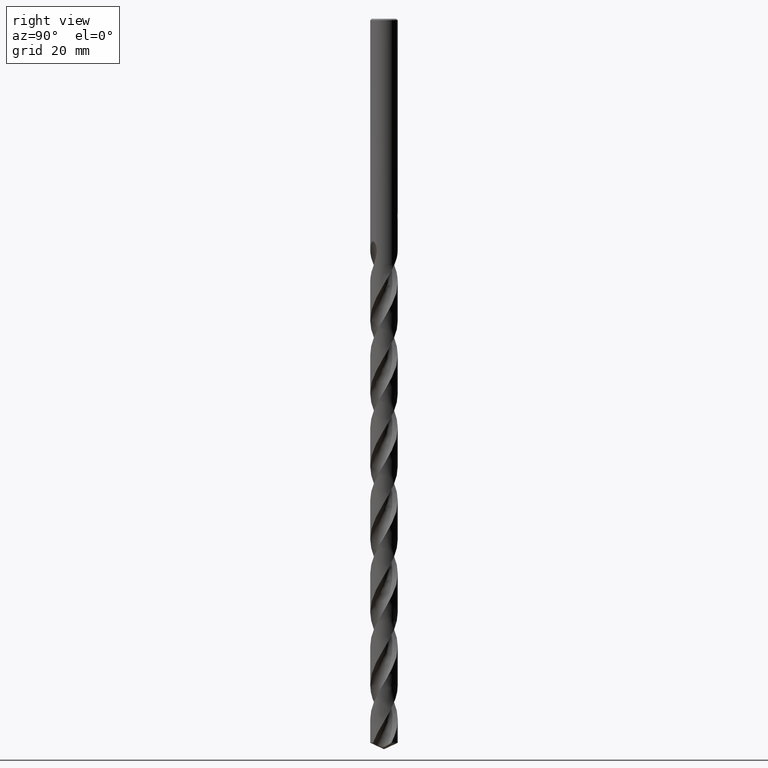
[diagram: clean part render]
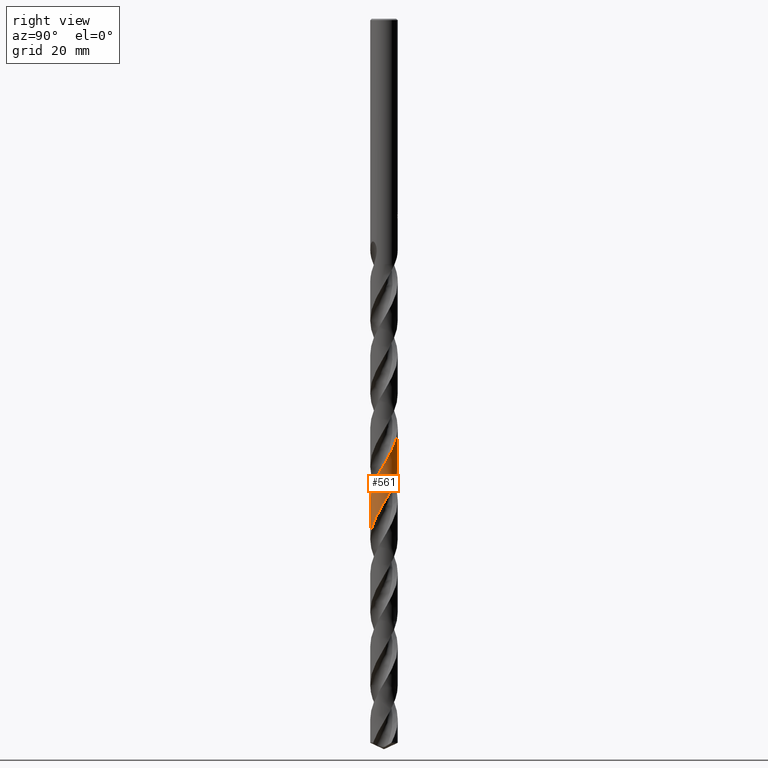
[diagram: same view with one face highlighted and labeled with its STEP entity id]
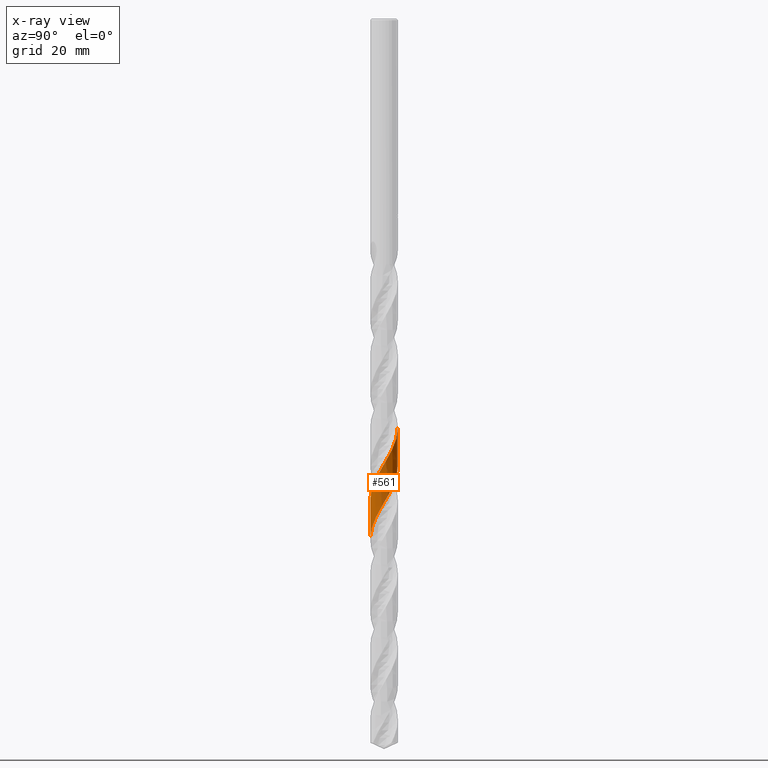
[diagram: x-ray of the same camera — body ghosted, the highlighted face saturated]
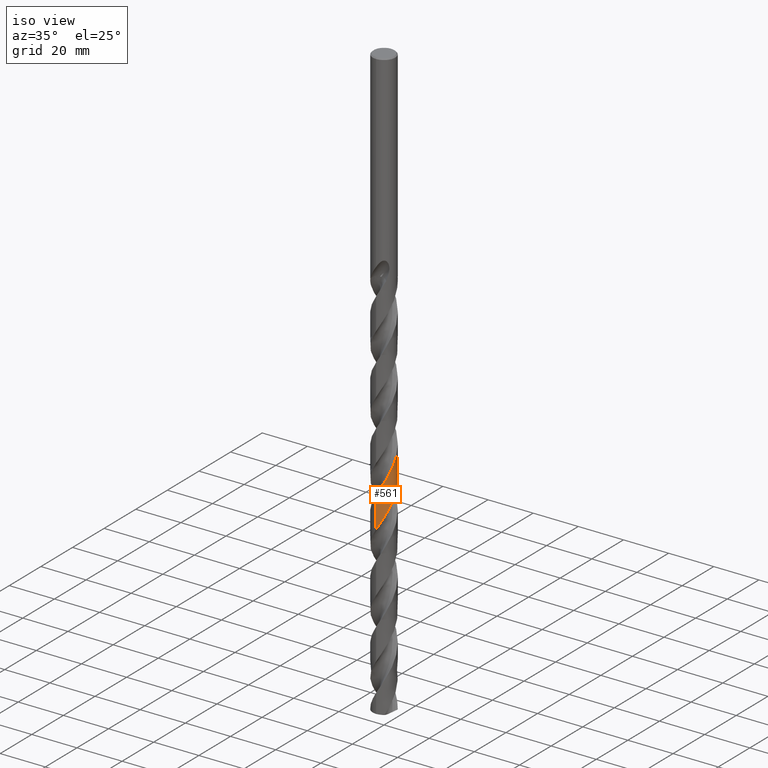
[diagram: same view with one face highlighted and labeled with its STEP entity id]
A machine part, right view. The second image highlights one B-rep face of the part: STEP entity #561.
The next image is the same camera in x-ray: the body ghosted, the highlighted face saturated — about 0% of this face is hidden behind the body in this view.
A second angle (iso view) of the same face is appended — the face is thin or edge-on in the first view.
In plain terms, the highlighted conical surface has half-angle 0 deg.
Its self-contained STEP definition (entity closure, byte-faithful):
#369=EDGE_CURVE('',#659,#495,#949,.T.);
#429=EDGE_CURVE('',#841,#495,#1012,.T.);
#495=VERTEX_POINT('',#1086);
#535=EDGE_CURVE('',#841,#693,#1130,.T.);
#561=ADVANCED_FACE('',(#1158),#1159,.T.);
#659=VERTEX_POINT('',#1267);
#671=EDGE_CURVE('',#659,#693,#1280,.T.);
#693=VERTEX_POINT('',#1303);
#841=VERTEX_POINT('',#1461);
#949=LINE('',#5576,#5577);
#1012=B_SPLINE_CURVE_WITH_KNOTS('',3,(#8842,#8843,#8844,#8845,#8846,#8847,#8848,#8849,#8850,#8851,#8852,#8853,#8854,#8855,#8856,#8857,#8858,#8859,#8860,#8861,#8862,#8863,#8864,#8865,#8866,#8867,#8868,#8869,#8870,#8871,#8872,#8873,#8874,#8875,#8876,#8877,#8878,#8879,#8880,#8881,#8882,#8883,#8884,#8885,#8886,#8887,#8888,#8889,#8890,#8891,#8892,#8893,#8894,#8895,#8896,#8897,#8898,#8899,#8900,#8901,#8902,#8903,#8904,#8905,#8906,#8907,#8908,#8909,#8910,#8911,#8912,#8913,#8914,#8915,#8916,#8917,#8918,#8919,#8920,#8921,#8922,#8923,#8924,#8925,#8926,#8927,#8928,#8929,#8930,#8931,#8932,#8933,#8934,#8935,#8936,#8937,#8938,#8939,#8940,#8941,#8942,#8943,#8944,#8945,#8946,#8947,#8948,#8949,#8950,#8951,#8952,#8953,#8954,#8955,#8956,#8957,#8958,#8959,#8960,#8961,#8962,#8963,#8964,#8965,#8966,#8967,#8968,#8969,#8970,#8971,#8972,#8973,#8974,#8975,#8976,#8977,#8978,#8979,#8980,#8981,#8982,#8983,#8984,#8985,#8986,#8987,#8988,#8989,#8990,#8991,#8992,#8993,#8994,#8995,#8996,#8997,#8998,#8999,#9000,#9001,#9002,#9003,#9004,#9005,#9006,#9007,#9008,#9009,#9010,#9011,#9012,#9013,#9014,#9015,#9016,#9017,#9018,#9019,#9020,#9021,#9022,#9023,#9024,#9025,#9026,#9027,#9028,#9029,#9030,#9031,#9032,#9033,#9034,#9035,#9036,#9037,#9038,#9039,#9040,#9041,#9042,#9043,#9044,#9045,#9046,#9047,#9048,#9049,#9050,#9051,#9052,#9053,#9054,#9055,#9056,#9057,#9058,#9059,#9060,#9061,#9062,#9063,#9064,#9065,#9066,#9067,#9068,#9069,#9070,#9071,#9072,#9073,#9074,#9075,#9076,#9077,#9078,#9079,#9080,#9081,#9082,#9083,#9084,#9085,#9086,#9087,#9088,#9089,#9090,#9091,#9092,#9093,#9094,#9095,#9096,#9097,#9098,#9099,#9100,#9101,#9102,#9103,#9104,#9105,#9106,#9107,#9108,#9109,#9110,#9111,#9112,#9113,#9114,#9115,#9116,#9117,#9118,#9119,#9120,#9121,#9122,#9123,#9124,#9125,#9126,#9127,#9128,#9129,#9130,#9131,#9132,#9133,#9134,#9135,#9136,#9137,#9138,#9139,#9140,#9141,#9142,#9143,#9144,#9145,#9146,#9147,#9148,#9149),.UNSPECIFIED.,.F.,.F.,(4,2,2,2,2,2,2,2,2,2,2,2,2,2,2,2,2,2,2,2,2,2,2,2,2,2,2,2,2,2,2,2,2,2,2,2,2,2,2,2,2,2,2,2,2,2,2,2,2,2,2,2,2,2,2,2,2,2,2,2,2,2,2,2,2,2,2,2,2,2,2,2,2,2,2,2,2,2,2,2,2,2,2,2,2,2,2,2,2,2,2,2,2,2,2,2,2,2,2,2,2,2,2,2,2,2,2,2,2,2,2,2,2,2,2,2,2,2,2,2,2,2,2,2,2,2,2,2,2,2,2,2,2,2,2,2,2,2,2,2,2,2,2,2,2,2,2,2,2,2,2,2,2,4),(0.0,0.435718244585031,0.484115060968319,0.509547161773536,0.526948112551785,0.541206290508845,0.554756776710243,0.569361690684955,0.589321682858434,1.23088287567476,1.33036131656711,1.37777481741036,1.41498431952992,1.45565349463752,1.52114553062346,2.23945389191397,2.49490568903038,2.88014645321808,3.05234110906828,3.19027344903614,3.40695138401048,3.71450316350163,4.08795710124416,4.54635669786202,5.6154591620782,6.66358860422365,7.95430748031894,8.75323194445568,9.88477102001912,12.2947155136351,12.3880066126287,13.8731983278041,14.7676990846338,15.9263431146335,18.1226704372064,19.0106658292183,21.2288938584972,21.6692479653804,23.2748035855574,24.2020378158347,25.1173389812251,27.3469397207913,27.7824081490958,29.3782666520677,30.2711357029553,31.2193269834749,33.4254435768597,34.3054587980385,36.5783908546593,36.9964481058871,38.6450904078381,40.5096725096187,41.8070410819134,42.3362881904903,43.4094630010701,45.360980717729,46.4597744490756,48.3886397044208,49.5258789961715,51.4894783513444,52.5719727168675,54.5211483748533,55.6225196394295,57.5514191862852,58.6875377118123,60.6511378921584,61.7325551394776,63.6800776023219,64.7829406089127,66.7119517926033,67.8468173818095,69.8103374450269,70.8907933232047,72.8366489928689,73.9410419376401,75.870247710226,77.0037193491588,78.9670784697919,80.0466883855986,81.9908688976117,83.0968222379517,85.0263025824829,86.1582461454551,88.1213655216056,89.2002415094524,91.1427432548403,92.2502803913138,94.1801120060365,95.310400202493,97.2732034781779,98.3514540477423,100.292278494473,101.401415121555,103.331671814804,104.460184374184,106.422598141905,107.500327425587,109.439481217646,110.550224902941,112.480976398374,113.607601375202,115.569554993774,116.646863228071,118.584358306142,119.696707977051,121.628019907817,122.752653715447,124.71407913272,125.791062968096,127.72691636973,128.840862803291,130.772796291005,131.895344493309,133.8561769817,134.932928482605,136.867162420109,137.982687354951,139.915298511562,141.035676255576,142.995853952872,144.072461363443,146.005103051353,147.122179722644,149.055519249508,150.173651585641,152.133115216936,153.209663509201,155.140745193271,156.259337848963,158.193450489082,159.309273412969,161.267967680424,162.344536628702,164.274092534919,165.394159968479,167.329092565995,168.442545055748,170.400401971103,171.477069787703,173.405132756468,174.526720728242,176.462785047237,177.57310678739,179.528140299061,180.608546616205,182.543279619916,183.651287084132,185.553809243366,186.722823471459,189.052467859425,189.454484555321,190.86835633027,191.77812971106,192.696222976878),.UNSPECIFIED.);
#1086=CARTESIAN_POINT('',(1.2740685231872E-014,-4.99994943802776,-174.858262309358));
#1130=LINE('',#11352,#11353);
#1158=FACE_OUTER_BOUND('',#12196,.T.);
#1159=CONICAL_SURFACE('',#12197,4.99995,5.75809787312949E-007);
#1267=CARTESIAN_POINT('',(1.80697562416473E-014,-4.99995746631568,-188.800866434747));
#1280=B_SPLINE_CURVE_WITH_KNOTS('',3,(#14878,#14879,#14880,#14881,#14882,#14883,#14884,#14885,#14886,#14887,#14888,#14889,#14890,#14891,#14892,#14893,#14894,#14895,#14896,#14897,#14898,#14899,#14900,#14901,#14902,#14903,#14904,#14905,#14906,#14907,#14908,#14909,#14910,#14911,#14912,#14913,#14914,#14915,#14916,#14917,#14918,#14919,#14920,#14921,#14922,#14923,#14924,#14925,#14926,#14927,#14928,#14929,#14930,#14931,#14932,#14933,#14934,#14935,#14936,#14937,#14938,#14939,#14940,#14941,#14942,#14943,#14944,#14945,#14946,#14947,#14948,#14949,#14950,#14951,#14952,#14953,#14954,#14955,#14956,#14957,#14958,#14959,#14960,#14961,#14962,#14963,#14964,#14965,#14966,#14967,#14968,#14969,#14970,#14971,#14972,#14973,#14974,#14975,#14976,#14977,#14978,#14979,#14980,#14981,#14982,#14983,#14984,#14985,#14986,#14987,#14988,#14989,#14990,#14991,#14992,#14993,#14994,#14995,#14996,#14997,#14998,#14999,#15000,#15001,#15002,#15003,#15004,#15005,#15006,#15007,#15008,#15009,#15010,#15011,#15012,#15013,#15014,#15015,#15016,#15017,#15018,#15019,#15020,#15021,#15022,#15023,#15024,#15025,#15026,#15027,#15028,#15029,#15030,#15031,#15032,#15033,#15034,#15035,#15036,#15037,#15038,#15039,#15040,#15041,#15042,#15043,#15044,#15045,#15046,#15047,#15048,#15049,#15050,#15051,#15052,#15053,#15054,#15055,#15056,#15057,#15058,#15059,#15060,#15061,#15062,#15063,#15064,#15065,#15066,#15067,#15068,#15069,#15070,#15071,#15072,#15073,#15074,#15075,#15076,#15077,#15078,#15079,#15080,#15081,#15082,#15083,#15084,#15085,#15086,#15087,#15088,#15089,#15090,#15091,#15092,#15093,#15094,#15095,#15096,#15097,#15098,#15099,#15100,#15101,#15102,#15103,#15104,#15105,#15106,#15107,#15108,#15109,#15110,#15111,#15112,#15113,#15114,#15115,#15116,#15117,#15118,#15119,#15120,#15121,#15122,#15123,#15124,#15125,#15126,#15127,#15128,#15129,#15130,#15131,#15132,#15133,#15134,#15135,#15136,#15137,#15138,#15139,#15140,#15141,#15142,#15143,#15144,#15145,#15146,#15147,#15148,#15149,#15150,#15151,#15152,#15153,#15154,#15155,#15156,#15157,#15158,#15159,#15160,#15161,#15162,#15163,#15164,#15165,#15166,#15167,#15168,#15169,#15170,#15171,#15172,#15173),.UNSPECIFIED.,.F.,.F.,(4,2,2,2,2,2,2,2,2,2,2,2,2,2,2,2,2,2,2,2,2,2,2,2,2,2,2,2,2,2,2,2,2,2,2,2,2,2,2,2,2,2,2,2,2,2,2,2,2,2,2,2,2,2,2,2,2,2,2,2,2,2,2,2,2,2,2,2,2,2,2,2,2,2,2,2,2,2,2,2,2,2,2,2,2,2,2,2,2,2,2,2,2,2,2,2,2,2,2,2,2,2,2,2,2,2,2,2,2,2,2,2,2,2,2,2,2,2,2,2,2,2,2,2,2,2,2,2,2,2,2,2,2,2,2,2,2,2,2,2,2,2,2,2,2,2,2,4),(0.0,3.63092045738316,3.76916193885586,6.03348470778604,8.04692963287805,9.1553045800552,10.6858758579774,12.3196856508466,14.6151228543069,16.024435785243,17.5369031951534,19.7463248661141,19.8237305261418,22.1584827281911,23.5721104147942,24.8866404650494,27.1544839721269,29.2984053452706,29.3766805252054,31.6731811596563,33.1360060317946,34.4519546405972,36.6689529857119,38.1363260768863,39.635351245708,40.9944135406578,41.6931452725307,42.4671765550298,43.9206440687782,44.6941045309783,46.1432547306018,47.6348495669091,49.8940466167516,51.6284642345732,51.7858807472319,54.1712195073922,55.6732717725856,57.9714588357184,58.1318691472022,60.4684983534327,61.8981185708373,63.2291073761004,65.8958314270073,67.559272495795,67.7188748784987,70.0708468598854,71.5165820744635,72.9511099038995,73.4962191357789,74.9730690717979,76.4316141630787,77.9066461203584,79.3684072784305,80.0421479452694,80.7960609775947,82.2744112272234,84.5146017275254,86.0568462364468,87.4199915349269,88.7297549152658,89.391828480577,90.5065844603605,92.1273317466116,92.8340723769178,93.583211059707,95.0868400981892,97.3608637575622,98.8541343589686,100.234479889895,101.586457182187,102.327736058763,103.105370605082,105.906778053553,106.06715147118,108.420951105879,109.89983580632,111.435091641284,113.719995381445,115.13253333497,115.887180879951,118.583276421057,119.280358107793,120.858204307852,121.560405127107,122.319362584216,125.051386301657,125.393031385661,127.8530579985,129.182506410346,130.663459530093,133.086164701429,134.51682009706,135.280867866072,136.754794579141,139.051630208203,140.539422114528,141.92786532,143.250202241799,145.575961457431,146.678207256176,149.275290921438,150.702720728012,151.424119588711,152.981197660303,155.243651860265,156.354602901283,158.642237577714,160.031414739876,161.373186235016,162.736500290042,164.348510698604,165.968364510125,168.542090162884,169.559765216219,170.856228849685,172.1861625982,174.663900187947,175.790487761648,176.441182421034,177.173323473632,178.71230134711,181.00737350552,183.087791848774,183.413482285452,185.983261332298,186.787471516701,188.270575471459,189.121435970036,190.600475925247,191.960868233357,194.394745964169,194.718576604657,197.749478739512,198.505925563519,198.564205547254,199.002836304895,199.364118057148,199.59047819011,200.015335436858,200.622507709534,201.106238512391,201.194998739443,201.248511641076,201.305038434025,201.392088668999,201.652886823243,202.061841828865,202.718734976694),.UNSPECIFIED.);
#1303=CARTESIAN_POINT('',(1.16365170982926E-012,4.99994223192751,-162.343538856081));
#1461=CARTESIAN_POINT('',(3.73617005997489E-013,4.99993420495159,-148.4032132677));
#5576=CARTESIAN_POINT('',(6.12374780959921E-016,-4.99995,-175.834230854612));
#5577=VECTOR('',#18384,1.0);
#8842=CARTESIAN_POINT('',(-3.47531599367033,3.59460412047406,-89.005));
#8843=CARTESIAN_POINT('',(-3.42468505081887,3.64355496047389,-89.1320228739977));
#8844=CARTESIAN_POINT('',(-3.37260652016768,3.69184736805069,-89.2594740710527));
#8845=CARTESIAN_POINT('',(-3.31262006262031,3.7450787587917,-89.4010412985137));
#8846=CARTESIAN_POINT('',(-3.30660280339091,3.75039263800871,-89.4151869308565));
#8847=CARTESIAN_POINT('',(-3.29739019180853,3.75848883156676,-89.4367588850358));
#8848=CARTESIAN_POINT('',(-3.29421096098873,3.76127566307644,-89.4441878597196));
#8849=CARTESIAN_POINT('',(-3.2888463694803,3.76596608828876,-89.4566972541646));
#8850=CARTESIAN_POINT('',(-3.28666428057786,3.76787061524773,-89.4617782895618));
#8851=CARTESIAN_POINT('',(-3.28268910608387,3.7713340601257,-89.4710212915336));
#8852=CARTESIAN_POINT('',(-3.28089698469266,3.77289323590485,-89.4751834092989));
#8853=CARTESIAN_POINT('',(-3.27739801346085,3.775933017823,-89.483300034577));
#8854=CARTESIAN_POINT('',(-3.27569138038618,3.77741365290572,-89.4872545138104));
#8855=CARTESIAN_POINT('',(-3.27214176229517,3.78048900084448,-89.4954701876824));
#8856=CARTESIAN_POINT('',(-3.27029854153303,3.78208359005972,-89.4997312105317));
#8857=CARTESIAN_POINT('',(-3.26593154073427,3.78585594305489,-89.5098142861441));
#8858=CARTESIAN_POINT('',(-3.26340612411988,3.78803307530223,-89.515635635492));
#8859=CARTESIAN_POINT('',(-3.17958339550318,3.86014945641344,-89.7085348501207));
#8860=CARTESIAN_POINT('',(-3.09606539726341,3.92754428769936,-89.8905348285023));
#8861=CARTESIAN_POINT('',(-2.99406802839043,4.00435472959701,-90.1027749970887));
#8862=CARTESIAN_POINT('',(-2.98029975897447,4.01461280061151,-90.1312317362874));
#8863=CARTESIAN_POINT('',(-2.95984708488746,4.02968724055971,-90.1732416129077));
#8864=CARTESIAN_POINT('',(-2.95322854176247,4.03454030761042,-90.186796015465));
#8865=CARTESIAN_POINT('',(-2.94138463137374,4.04318005873176,-90.2109833089716));
#8866=CARTESIAN_POINT('',(-2.93616665413547,4.04697097466858,-90.2216157839944));
#8867=CARTESIAN_POINT('',(-2.9252238457296,4.05488870077216,-90.2438662111709));
#8868=CARTESIAN_POINT('',(-2.91949771156033,4.0590134527432,-90.2554824212455));
#8869=CARTESIAN_POINT('',(-2.90451921779952,4.06975488483921,-90.2858011575235));
#8870=CARTESIAN_POINT('',(-2.89525019562132,4.07635419045374,-90.3044965333719));
#8871=CARTESIAN_POINT('',(-2.78396691711099,4.15501316081761,-90.5282219539086));
#8872=CARTESIAN_POINT('',(-2.67842203103139,4.2239286967281,-90.7349168658022));
#8873=CARTESIAN_POINT('',(-2.52897783219522,4.31339432760576,-91.0243988756073));
#8874=CARTESIAN_POINT('',(-2.48977032252504,4.33614372485311,-91.1000348483832));
#8875=CARTESIAN_POINT('',(-2.38990053424511,4.39228119476851,-91.292173168053));
#8876=CARTESIAN_POINT('',(-2.32931224660678,4.42470453356551,-91.408139158417));
#8877=CARTESIAN_POINT('',(-2.24098441412819,4.46966901336798,-91.5757629837237));
#8878=CARTESIAN_POINT('',(-2.21358287537642,4.48330256780603,-91.6275693505206));
#8879=CARTESIAN_POINT('',(-2.16402990283814,4.50739290307737,-91.720856826479));
#8880=CARTESIAN_POINT('',(-2.14191155688319,4.51794548624368,-91.7623526012764));
#8881=CARTESIAN_POINT('',(-2.08484764516552,4.54465719160618,-91.8690337757107));
#8882=CARTESIAN_POINT('',(-2.04978472209444,4.56057923821253,-91.9342266624314));
#8883=CARTESIAN_POINT('',(-1.96449771479029,4.5981251946828,-92.0919138564434));
#8884=CARTESIAN_POINT('',(-1.9140640465881,4.61934798423115,-92.1844246286096));
#8885=CARTESIAN_POINT('',(-1.80154470765945,4.66453401691002,-92.3891575131925));
#8886=CARTESIAN_POINT('',(-1.73939284859127,4.68806595645128,-92.5010989362673));
#8887=CARTESIAN_POINT('',(-1.59972611920222,4.73778133992949,-92.7506918574156));
#8888=CARTESIAN_POINT('',(-1.5220763313845,4.76329601066902,-92.8881261171468));
#8889=CARTESIAN_POINT('',(-1.2612741388465,4.84195861088783,-93.3463390222096));
#8890=CARTESIAN_POINT('',(-1.07579476903563,4.88651162741719,-93.6667053690266));
#8891=CARTESIAN_POINT('',(-0.70446639080806,4.95354929783398,-94.3019570194482));
#8892=CARTESIAN_POINT('',(-0.519034926765091,4.97638862767784,-94.6164793194427));
#8893=CARTESIAN_POINT('',(-0.103635167500438,5.00410655559904,-95.3184191918231));
#8894=CARTESIAN_POINT('',(0.126526154915741,5.00359360035337,-95.7051166141115));
#8895=CARTESIAN_POINT('',(0.498013034195727,4.97707748150715,-96.3319315001113));
#8896=CARTESIAN_POINT('',(0.639528723484639,4.96087821623571,-96.5714704121131));
#8897=CARTESIAN_POINT('',(0.979301456105437,4.90720582475836,-97.1505822568858));
#8898=CARTESIAN_POINT('',(1.17628446672742,4.86374203184323,-97.4897625820577));
#8899=CARTESIAN_POINT('',(1.78265558998682,4.6909784138133,-98.5524844663466));
#8900=CARTESIAN_POINT('',(2.17865502767563,4.52072753337644,-99.2724119743668));
#8901=CARTESIAN_POINT('',(2.5624807798167,4.29337072105549,-100.023284648702));
#8902=CARTESIAN_POINT('',(2.57674114782507,4.28482730368809,-100.051267443078));
#8903=CARTESIAN_POINT('',(2.81729113626466,4.13907835953697,-100.524781967647));
#8904=CARTESIAN_POINT('',(3.0323323434162,3.98421990332773,-100.970191759009));
#8905=CARTESIAN_POINT('',(3.35558293920989,3.71005664761316,-101.684220544416));
#8906=CARTESIAN_POINT('',(3.47212377865768,3.60122763084523,-101.952419145222));
#8907=CARTESIAN_POINT('',(3.72729101483938,3.33901356013596,-102.568356374614));
#8908=CARTESIAN_POINT('',(3.86193405300012,3.18231435681845,-102.91541353244));
#8909=CARTESIAN_POINT('',(4.22256676825437,2.70592234302835,-103.922179158727));
#8910=CARTESIAN_POINT('',(4.42134165447849,2.36729097376634,-104.579188983351));
#8911=CARTESIAN_POINT('',(4.6422065040908,1.86388388920349,-105.504508465044));
#8912=CARTESIAN_POINT('',(4.69885191537736,1.71607102832597,-105.770732230806));
#8913=CARTESIAN_POINT('',(4.87211121610851,1.1906782354631,-106.702912582662));
#8914=CARTESIAN_POINT('',(4.95098551703927,0.801979490081955,-107.366440745602));
#8915=CARTESIAN_POINT('',(4.98964657863562,0.329693577200713,-108.164083755565));
#8916=CARTESIAN_POINT('',(4.99420603425735,0.2513442343594,-108.296141498613));
#8917=CARTESIAN_POINT('',(5.00681473452717,-0.112989337697959,-108.910093671169));
#8918=CARTESIAN_POINT('',(4.99215087214397,-0.399243284274854,-109.391604112653));
#8919=CARTESIAN_POINT('',(4.9305319411147,-0.846330288067592,-110.151729781378));
#8920=CARTESIAN_POINT('',(4.89986999887433,-1.00882063886545,-110.429762117157));
#8921=CARTESIAN_POINT('',(4.82304075521522,-1.3281669455258,-110.982645136899));
#8922=CARTESIAN_POINT('',(4.77714760696995,-1.48478089090375,-111.257083984282));
#8923=CARTESIAN_POINT('',(4.59352201772887,-2.01406032560235,-112.201050949729));
#8924=CARTESIAN_POINT('',(4.41903435996506,-2.37260779244288,-112.868065446026));
#8925=CARTESIAN_POINT('',(4.16181881270679,-2.77208102949067,-113.667804711739));
#8926=CARTESIAN_POINT('',(4.11828547259934,-2.8363516759449,-113.79842287414));
#8927=CARTESIAN_POINT('',(3.90833795234767,-3.131282978148,-114.408117051102));
#8928=CARTESIAN_POINT('',(3.7239191270887,-3.34850225604016,-114.886824811352));
#8929=CARTESIAN_POINT('',(3.4091005894106,-3.66094362096452,-115.633876001165));
#8930=CARTESIAN_POINT('',(3.29084402899773,-3.76760454005383,-115.901675539602));
#8931=CARTESIAN_POINT('',(3.03687029292154,-3.97557018074077,-116.454226119166));
#8932=CARTESIAN_POINT('',(2.90077044519101,-4.07593329555456,-116.738547202599));
#8933=CARTESIAN_POINT('',(2.43213369350182,-4.38615966136368,-117.685528839927));
#8934=CARTESIAN_POINT('',(2.07978661954961,-4.56381437835556,-118.345738501177));
#8935=CARTESIAN_POINT('',(1.56268252657829,-4.75203331210102,-119.27202388923));
#8936=CARTESIAN_POINT('',(1.41284300984643,-4.79871207501344,-119.535992480902));
#8937=CARTESIAN_POINT('',(0.869208887248252,-4.94041277970991,-120.482617392629));
#8938=CARTESIAN_POINT('',(0.466180762513919,-4.99461074021498,-121.162607846953));
#8939=CARTESIAN_POINT('',(-0.0136410865950173,-5.00045609708932,-121.97032574982));
#8940=CARTESIAN_POINT('',(-0.0881747232660342,-4.99969690447061,-122.095763161574));
#8941=CARTESIAN_POINT('',(-0.456379080907655,-4.9877125922911,-122.71624629366));
#8942=CARTESIAN_POINT('',(-0.748720246235105,-4.95227235392374,-123.210833185146));
#8943=CARTESIAN_POINT('',(-1.36144971260586,-4.82246369927077,-124.265653618446));
#8944=CARTESIAN_POINT('',(-1.67889111693472,-4.72132832300412,-124.823390180501));
#8945=CARTESIAN_POINT('',(-2.19611576570614,-4.49774837133195,-125.772904486855));
#8946=CARTESIAN_POINT('',(-2.40177396873304,-4.39137835848265,-126.162156995746));
#8947=CARTESIAN_POINT('',(-2.67998375323915,-4.22206214232802,-126.710590832725));
#8948=CARTESIAN_POINT('',(-2.75919827788762,-4.17072560921418,-126.869446285896));
#8949=CARTESIAN_POINT('',(-2.9945260575899,-4.00857413795467,-127.350521567164));
#8950=CARTESIAN_POINT('',(-3.14570728974164,-3.89105822755038,-127.672277355112));
#8951=CARTESIAN_POINT('',(-3.55167647361635,-3.53635447604263,-128.580609916308));
#8952=CARTESIAN_POINT('',(-3.78911212739151,-3.28070343899186,-129.165365986535));
#8953=CARTESIAN_POINT('',(-4.1158076129123,-2.84565857141222,-130.081200287285));
#8954=CARTESIAN_POINT('',(-4.22413235527976,-2.68221996074901,-130.410633907457));
#8955=CARTESIAN_POINT('',(-4.49536376572682,-2.21566152501395,-131.319937852834));
#8956=CARTESIAN_POINT('',(-4.63710588588345,-1.90128089412171,-131.898017837206));
#8957=CARTESIAN_POINT('',(-4.8093550881911,-1.38220994254965,-132.818684447312));
#8958=CARTESIAN_POINT('',(-4.86144577285735,-1.1860424981963,-133.159647607489));
#8959=CARTESIAN_POINT('',(-4.97059653825457,-0.644168251450184,-134.091011751476));
#8960=CARTESIAN_POINT('',(-5.0035172942571,-0.294581956121542,-134.67946328891));
#8961=CARTESIAN_POINT('',(-4.9974661722757,0.248777421891406,-135.594189221195));
#8962=CARTESIAN_POINT('',(-4.98413261603417,0.441514868797864,-135.918812803135));
#8963=CARTESIAN_POINT('',(-4.91571311087664,0.977646546883962,-136.829473755114));
#8964=CARTESIAN_POINT('',(-4.83589008141565,1.31695544602317,-137.413682301875));
#8965=CARTESIAN_POINT('',(-4.65679871687426,1.830879128958,-138.329822357452));
#8966=CARTESIAN_POINT('',(-4.58128266565648,2.01238532156885,-138.66011081078));
#8967=CARTESIAN_POINT('',(-4.34475509983313,2.49813268757535,-139.570432427686));
#8968=CARTESIAN_POINT('',(-4.1626366279769,2.79109099542263,-140.148669605773));
#8969=CARTESIAN_POINT('',(-3.82762076170681,3.22330692924373,-141.069245682816));
#8970=CARTESIAN_POINT('',(-3.69385679900069,3.37576086437995,-141.409961009318));
#8971=CARTESIAN_POINT('',(-3.30478981131645,3.76832292466406,-142.3412270799));
#8972=CARTESIAN_POINT('',(-3.03278735052023,3.99052322178478,-142.92982808665));
#8973=CARTESIAN_POINT('',(-2.5782753924011,4.2882451964358,-143.844464690318));
#8974=CARTESIAN_POINT('',(-2.41093210527554,4.38450820925879,-144.168848727337));
#8975=CARTESIAN_POINT('',(-1.9279565970969,4.62632859496668,-145.078922554091));
#8976=CARTESIAN_POINT('',(-1.6019406900982,4.74909411416516,-145.662788054396));
#8977=CARTESIAN_POINT('',(-1.07532621582527,4.88689453631888,-146.579114625469));
#8978=CARTESIAN_POINT('',(-0.882224347362186,4.92541344773481,-146.909933672276));
#8979=CARTESIAN_POINT('',(-0.346660396384896,4.99975122606779,-147.820970407359));
#8980=CARTESIAN_POINT('',(-0.00180888002815927,5.01177129694473,-148.399387817308));
#8981=CARTESIAN_POINT('',(0.54370139879345,4.97441002225403,-149.319856761168));
#8982=CARTESIAN_POINT('',(0.744659746336682,4.94831278817893,-149.660284562052));
#8983=CARTESIAN_POINT('',(1.28733862673382,4.84404306659718,-150.591388401855));
#8984=CARTESIAN_POINT('',(1.62348893325342,4.74198894311476,-151.18011484876));
#8985=CARTESIAN_POINT('',(2.12393232044449,4.53050359785445,-152.094672499715));
#8986=CARTESIAN_POINT('',(2.29700813276759,4.44525139843564,-152.418851468163));
#8987=CARTESIAN_POINT('',(2.76666916300384,4.17915992888558,-153.328368532548));
#8988=CARTESIAN_POINT('',(3.0501328323123,3.97702165464256,-153.911886751959));
#8989=CARTESIAN_POINT('',(3.45816306715033,3.6165381003137,-154.828407298141));
#8990=CARTESIAN_POINT('',(3.59799503828504,3.47744503397218,-155.159768640299));
#8991=CARTESIAN_POINT('',(3.95845735655538,3.0738303942688,-156.071557224707));
#8992=CARTESIAN_POINT('',(4.1606663148347,2.79407284254524,-156.650179590489));
#8993=CARTESIAN_POINT('',(4.43355291859913,2.32033244622634,-157.5705238161));
#8994=CARTESIAN_POINT('',(4.52377492696287,2.13909933532653,-157.910621723956));
#8995=CARTESIAN_POINT('',(4.73956761425011,1.63051628038373,-158.841496505426));
#8996=CARTESIAN_POINT('',(4.84217078115111,1.29446832217281,-159.43032438196));
#8997=CARTESIAN_POINT('',(4.94542835599059,0.761116388330279,-160.3448133984));
#8998=CARTESIAN_POINT('',(4.97107800682185,0.569998459123866,-160.668821700644));
#8999=CARTESIAN_POINT('',(5.01185701376665,0.0320509344922367,-161.577813860196));
#9000=CARTESIAN_POINT('',(5.00202091556826,-0.315752922142521,-162.160982118211));
#9001=CARTESIAN_POINT('',(4.93015395036746,-0.855569413792833,-163.07770335136));
#9002=CARTESIAN_POINT('',(4.89253390677194,-1.04951487644901,-163.409616383204));
#9003=CARTESIAN_POINT('',(4.75813982813582,-1.574187213463,-164.322190357928));
#9004=CARTESIAN_POINT('',(4.63846012831351,-1.89810885265032,-164.901041540262));
#9005=CARTESIAN_POINT('',(4.39714849391343,-2.38859320196563,-165.821244629696));
#9006=CARTESIAN_POINT('',(4.2970432504344,-2.5643055967453,-166.160972305839));
#9007=CARTESIAN_POINT('',(3.99510652546842,-3.02676214302634,-167.091553832129));
#9008=CARTESIAN_POINT('',(3.77322267960511,-3.29926317856547,-167.680459713159));
#9009=CARTESIAN_POINT('',(3.38792462245079,-3.68219264359693,-168.594890017269));
#9010=CARTESIAN_POINT('',(3.24358958494998,-3.80994193234132,-168.918761074677));
#9011=CARTESIAN_POINT('',(2.81988058677412,-4.14341803777718,-169.827260628003));
#9012=CARTESIAN_POINT('',(2.5258044028387,-4.32898676646473,-170.410077656902));
#9013=CARTESIAN_POINT('',(2.03745733997253,-4.57026956319358,-171.327005601345));
#9014=CARTESIAN_POINT('',(1.85515053723005,-4.64725350764564,-171.659477611529));
#9015=CARTESIAN_POINT('',(1.34414109010901,-4.82818768390965,-172.572867433942));
#9016=CARTESIAN_POINT('',(1.00832984316627,-4.9093331913675,-173.151970334562));
#9017=CARTESIAN_POINT('',(0.466671477821541,-4.98221428547001,-174.072016926892));
#9018=CARTESIAN_POINT('',(0.265229011737217,-4.9969837577725,-174.411336047304));
#9019=CARTESIAN_POINT('',(-0.286813662700959,-5.00399583500092,-175.341562865588));
#9020=CARTESIAN_POINT('',(-0.636763181709813,-4.97161450632109,-175.930524037696));
#9021=CARTESIAN_POINT('',(-1.16940850900497,-4.86508820457209,-176.844905236036));
#9022=CARTESIAN_POINT('',(-1.35585680084816,-4.81645168534857,-177.168671442245));
#9023=CARTESIAN_POINT('',(-1.86861919064418,-4.65057024781432,-178.076711179968));
#9024=CARTESIAN_POINT('',(-2.18640213090441,-4.50991811044037,-178.659177221798));
#9025=CARTESIAN_POINT('',(-2.65904034447961,-4.23890096962448,-179.576317114546));
#9026=CARTESIAN_POINT('',(-2.8248451322222,-4.13025171509377,-179.909353089379));
#9027=CARTESIAN_POINT('',(-3.26023897625427,-3.80645690122317,-180.823586053141));
#9028=CARTESIAN_POINT('',(-3.51485516623266,-3.57270705357745,-181.402962731612));
#9029=CARTESIAN_POINT('',(-3.87709673996685,-3.16359017911754,-182.322838698064));
#9030=CARTESIAN_POINT('',(-4.00144467856722,-3.00475859516592,-182.661713010992));
#9031=CARTESIAN_POINT('',(-4.31477383667996,-2.55049507502643,-183.591526621871));
#9032=CARTESIAN_POINT('',(-4.48291701775076,-2.24185976265824,-184.180521233147));
#9033=CARTESIAN_POINT('',(-4.6912869428861,-1.74024626402575,-185.094862510605));
#9034=CARTESIAN_POINT('',(-4.75479381865117,-1.5583712549179,-185.418554975027));
#9035=CARTESIAN_POINT('',(-4.90275216120143,-1.04041584238453,-186.326167953229));
#9036=CARTESIAN_POINT('',(-4.96305134914507,-0.698383205096803,-186.908284790703));
#9037=CARTESIAN_POINT('',(-5.00149977523615,-0.154785333472409,-187.825640983428));
#9038=CARTESIAN_POINT('',(-5.00369808832412,0.0437731643899113,-188.159243478299));
#9039=CARTESIAN_POINT('',(-4.97742449211564,0.586248390903132,-189.074343223588));
#9040=CARTESIAN_POINT('',(-4.92516472997085,0.928097353923405,-189.654014539861));
#9041=CARTESIAN_POINT('',(-4.7872768286601,1.45674124261206,-190.573707018032));
#9042=CARTESIAN_POINT('',(-4.72476590091086,1.64822740455293,-190.912102736609));
#9043=CARTESIAN_POINT('',(-4.52229849221132,2.16128847943296,-191.841447934588));
#9044=CARTESIAN_POINT('',(-4.35973236204466,2.47290660637257,-192.430454940998));
#9045=CARTESIAN_POINT('',(-4.0593627201348,2.92544734582453,-193.344765150024));
#9046=CARTESIAN_POINT('',(-3.94375597338816,3.07951484031873,-193.668413840591));
#9047=CARTESIAN_POINT('',(-3.59629785432648,3.49084368968142,-194.575633561864));
#9048=CARTESIAN_POINT('',(-3.34607389862795,3.73139530069057,-195.157404555619));
#9049=CARTESIAN_POINT('',(-2.91608354649974,4.06639852744632,-196.074980395096));
#9050=CARTESIAN_POINT('',(-2.75216637812496,4.17907555464755,-196.40914937803));
#9051=CARTESIAN_POINT('',(-2.28662713685245,4.45981565947666,-197.325135731068));
#9052=CARTESIAN_POINT('',(-1.97346916991265,4.60697403540178,-197.905121342818));
#9053=CARTESIAN_POINT('',(-1.45775881635812,4.78695925464786,-198.824618746456));
#9054=CARTESIAN_POINT('',(-1.26421596876768,4.84166807105454,-199.162504561255));
#9055=CARTESIAN_POINT('',(-0.72567994279302,4.95941375505913,-200.091329393809));
#9056=CARTESIAN_POINT('',(-0.37634551548426,4.99809383924062,-200.680328506642));
#9057=CARTESIAN_POINT('',(0.166787651525301,5.00088932238487,-201.594616205833));
#9058=CARTESIAN_POINT('',(0.359130714543561,4.9907606832639,-201.918250040174));
#9059=CARTESIAN_POINT('',(0.894088326196208,4.93151702151247,-202.825110486156));
#9060=CARTESIAN_POINT('',(1.23307355441306,4.85787574660111,-203.406540516295));
#9061=CARTESIAN_POINT('',(1.75100931761542,4.68756738324246,-204.324338429637));
#9062=CARTESIAN_POINT('',(1.93623215385284,4.61413898400797,-204.659071425233));
#9063=CARTESIAN_POINT('',(2.42924526328202,4.38378513661969,-205.5759604141));
#9064=CARTESIAN_POINT('',(2.72610278144048,4.20563189681971,-206.156278648094));
#9065=CARTESIAN_POINT('',(3.16278873587827,3.87772170474155,-207.075570777669));
#9066=CARTESIAN_POINT('',(3.31581641000069,3.74770222152238,-207.412918096019));
#9067=CARTESIAN_POINT('',(3.71346131834957,3.36639833110616,-208.341174328211));
#9068=CARTESIAN_POINT('',(3.94025026439721,3.09790934488582,-208.930146234459));
#9069=CARTESIAN_POINT('',(4.24525497053683,2.64850391155801,-209.844419609797));
#9070=CARTESIAN_POINT('',(4.34404146325059,2.48314747762766,-210.168066155113));
#9071=CARTESIAN_POINT('',(4.59289115630271,2.00611908421341,-211.074601510631));
#9072=CARTESIAN_POINT('',(4.72060561274852,1.68381064501968,-211.655697002028));
#9073=CARTESIAN_POINT('',(4.86793846746651,1.15873941682487,-212.573718252942));
#9074=CARTESIAN_POINT('',(4.9102685738812,0.963699275254546,-212.909010073971));
#9075=CARTESIAN_POINT('',(4.99379720004387,0.425425149209922,-213.826813508407));
#9076=CARTESIAN_POINT('',(5.01127306607182,0.0794422397399454,-214.40748121266));
#9077=CARTESIAN_POINT('',(4.98226282108426,-0.46575528191303,-215.326559239862));
#9078=CARTESIAN_POINT('',(4.95960485570101,-0.66493821081518,-215.663342318946));
#9079=CARTESIAN_POINT('',(4.86466956364948,-1.20724954883777,-216.590985427779));
#9080=CARTESIAN_POINT('',(4.76813698482283,-1.54515787130245,-217.179911653861));
#9081=CARTESIAN_POINT('',(4.56497486322083,-2.04885917142297,-218.094178609487));
#9082=CARTESIAN_POINT('',(4.48272126182565,-2.22305743246544,-218.417864310011));
#9083=CARTESIAN_POINT('',(4.2254025416069,-2.69537540145741,-219.324109140656));
#9084=CARTESIAN_POINT('',(4.02908837592577,-2.98088817956394,-219.904878012686));
#9085=CARTESIAN_POINT('',(3.67518465413325,-3.39598269231532,-220.823122808265));
#9086=CARTESIAN_POINT('',(3.53660462577247,-3.54006498547529,-221.158965712947));
#9087=CARTESIAN_POINT('',(3.13578599249015,-3.90973682197173,-222.077691219225));
#9088=CARTESIAN_POINT('',(2.85804350215989,-4.11715379502003,-222.658723640598));
#9089=CARTESIAN_POINT('',(2.38924404817491,-4.39673641083034,-223.57758008378));
#9090=CARTESIAN_POINT('',(2.21153420101184,-4.48874672552885,-223.913776129054));
#9091=CARTESIAN_POINT('',(1.70869197423681,-4.71199050080017,-224.840765319753));
#9092=CARTESIAN_POINT('',(1.37436170132557,-4.82014463484755,-225.429628149093));
#9093=CARTESIAN_POINT('',(0.84291088526886,-4.93217833939098,-226.343896388153));
#9094=CARTESIAN_POINT('',(0.652393716375037,-4.96096958021028,-226.667646728427));
#9095=CARTESIAN_POINT('',(0.11696926138928,-5.01051989292274,-227.573636154576));
#9096=CARTESIAN_POINT('',(-0.229309465577413,-5.00665362001163,-228.154087830841));
#9097=CARTESIAN_POINT('',(-0.771335348596001,-4.94417828531328,-229.0725551831));
#9098=CARTESIAN_POINT('',(-0.968517830711548,-4.90935657032635,-229.408938727357));
#9099=CARTESIAN_POINT('',(-1.49936007161842,-4.78239685242116,-230.328589432885));
#9100=CARTESIAN_POINT('',(-1.82656496245433,-4.6672511612346,-230.910000051891));
#9101=CARTESIAN_POINT('',(-2.31979438469155,-4.43376084008295,-231.828628925973));
#9102=CARTESIAN_POINT('',(-2.49490056381756,-4.33763818287787,-232.164218406591));
#9103=CARTESIAN_POINT('',(-2.96014883505973,-4.04475165763566,-233.090517348823));
#9104=CARTESIAN_POINT('',(-3.23623707828797,-3.82745976124362,-233.679300237282));
#9105=CARTESIAN_POINT('',(-3.62545043354627,-3.44863148444484,-234.593577100355));
#9106=CARTESIAN_POINT('',(-3.75556837623573,-3.30644989143771,-234.917416027474));
#9107=CARTESIAN_POINT('',(-4.09501633567306,-2.88959392322541,-235.823184224713));
#9108=CARTESIAN_POINT('',(-4.28469891111848,-2.60008434260434,-236.403328721138));
#9109=CARTESIAN_POINT('',(-4.53500528011989,-2.11512600312303,-237.322016587956));
#9110=CARTESIAN_POINT('',(-4.61611137952058,-1.93170860005781,-237.658928677029));
#9111=CARTESIAN_POINT('',(-4.80668124092841,-1.419657059997,-238.579506701204));
#9112=CARTESIAN_POINT('',(-4.89343233452824,-1.08356073410886,-239.161309648264));
#9113=CARTESIAN_POINT('',(-4.97429621656667,-0.544019431300532,-240.079706506149));
#9114=CARTESIAN_POINT('',(-4.99201487217158,-0.345427737025667,-240.41467079105));
#9115=CARTESIAN_POINT('',(-5.00809571421032,0.203666955027278,-241.340240189636));
#9116=CARTESIAN_POINT('',(-4.9815490684759,0.553943366060462,-241.928922737513));
#9117=CARTESIAN_POINT('',(-4.88392772985489,1.08824323227899,-242.843211231073));
#9118=CARTESIAN_POINT('',(-4.83837368933079,1.27558540573376,-243.167162160864));
#9119=CARTESIAN_POINT('',(-4.68145582096669,1.78963897959066,-244.072742485746));
#9120=CARTESIAN_POINT('',(-4.54686714644905,2.10831840688474,-244.652589630944));
#9121=CARTESIAN_POINT('',(-4.28367383614658,2.58657044108066,-245.571521930291));
#9122=CARTESIAN_POINT('',(-4.17640774815366,2.75640670663481,-245.908976885342));
#9123=CARTESIAN_POINT('',(-3.85704876735136,3.20047415949104,-246.830590212946));
#9124=CARTESIAN_POINT('',(-3.62608765953394,3.45998876884984,-247.412877858352));
#9125=CARTESIAN_POINT('',(-3.22322644857509,3.82756270410438,-248.330906679446));
#9126=CARTESIAN_POINT('',(-3.06859023806606,3.95261075420278,-248.665016120357));
#9127=CARTESIAN_POINT('',(-2.62239592546198,4.2714516646929,-249.5890284503));
#9128=CARTESIAN_POINT('',(-2.31715556351583,4.44446059413523,-250.177020896444));
#9129=CARTESIAN_POINT('',(-1.81890152091779,4.6614316927463,-251.091821658304));
#9130=CARTESIAN_POINT('',(-1.63729016786606,4.72827495822857,-251.416980523603));
#9131=CARTESIAN_POINT('',(-1.12107584011628,4.88497286338846,-252.325928179696));
#9132=CARTESIAN_POINT('',(-0.780159311615814,4.95088848850979,-252.907905176813));
#9133=CARTESIAN_POINT('',(-0.237425336469176,4.99829331244179,-253.824983240193));
#9134=CARTESIAN_POINT('',(-0.0390138217172503,5.00377207106451,-254.158437764356));
#9135=CARTESIAN_POINT('',(0.499391900396068,4.98662716991588,-255.066089640151));
#9136=CARTESIAN_POINT('',(0.837772955087651,4.94106686276108,-255.63853750145));
#9137=CARTESIAN_POINT('',(1.37250274071248,4.81248529581217,-256.564405624855));
#9138=CARTESIAN_POINT('',(1.57268583608952,4.75083094614115,-256.916247809297));
#9139=CARTESIAN_POINT('',(2.15834594969927,4.52938588628591,-257.971110147734));
#9140=CARTESIAN_POINT('',(2.52849047729356,4.33367851261534,-258.670738959329));
#9141=CARTESIAN_POINT('',(2.92906330753353,4.05286973373216,-259.494147853274));
#9142=CARTESIAN_POINT('',(2.98709410157933,4.01029043761385,-259.615285091898));
#9143=CARTESIAN_POINT('',(3.24494453524299,3.81239670348453,-260.162836478075));
#9144=CARTESIAN_POINT('',(3.43370230363571,3.64330956991556,-260.589082773774));
#9145=CARTESIAN_POINT('',(3.72153257596149,3.34315686066683,-261.289844445217));
#9146=CARTESIAN_POINT('',(3.8284591443264,3.22016200444623,-261.56399724411));
#9147=CARTESIAN_POINT('',(4.03091150057803,2.96290165319859,-262.115098487271));
#9148=CARTESIAN_POINT('',(4.12617396053888,2.82873388302238,-262.391676479639));
#9149=CARTESIAN_POINT('',(4.21465926898946,2.69010171672401,-262.668461709225));
#11352=CARTESIAN_POINT('',(-6.12219326798919E-016,4.99995,-175.834230854612));
#11353=VECTOR('',#18546,1.0);
#12196=EDGE_LOOP('',(#18575,#18576,#18577,#18578));
#12197=AXIS2_PLACEMENT_3D('',#18579,#18580,#18581);
#14878=CARTESIAN_POINT('',(-3.03679725239333,3.97213575395614,-262.668461709225));
#14879=CARTESIAN_POINT('',(-3.52684899039458,3.59747817383969,-261.627153115114));
#14880=CARTESIAN_POINT('',(-3.9424847582049,3.13609302571658,-260.607782174116));
#14881=CARTESIAN_POINT('',(-4.27596657817596,2.59164814037696,-259.52792942513));
#14882=CARTESIAN_POINT('',(-4.28803579661346,2.57162949387975,-259.488358065137));
#14883=CARTESIAN_POINT('',(-4.49556428837438,2.22188710014918,-258.800390386817));
#14884=CARTESIAN_POINT('',(-4.65292241611794,1.87036096191628,-258.15831586026));
#14885=CARTESIAN_POINT('',(-4.87144132404517,1.17729284754137,-256.935592595536));
#14886=CARTESIAN_POINT('',(-4.94054500955113,0.841472575458065,-256.358301160881));
#14887=CARTESIAN_POINT('',(-4.99370750755249,0.313573857344874,-255.466061153967));
#14888=CARTESIAN_POINT('',(-5.0019740765783,0.125242613936801,-255.150007012272));
#14889=CARTESIAN_POINT('',(-4.99631559342286,-0.323153980087217,-254.395765898813));
#14890=CARTESIAN_POINT('',(-4.97275478196966,-0.582226420256522,-253.956789072966));
#14891=CARTESIAN_POINT('',(-4.88284100289404,-1.11109191302836,-253.052481044756));
#14892=CARTESIAN_POINT('',(-4.8137778385806,-1.38001535204621,-252.588010056027));
#14893=CARTESIAN_POINT('',(-4.59467449076795,-2.01017640061333,-251.465944021266));
#14894=CARTESIAN_POINT('',(-4.42414289706021,-2.36195868994292,-250.808490024073));
#14895=CARTESIAN_POINT('',(-4.08559262709566,-2.89225499020551,-249.750627467368));
#14896=CARTESIAN_POINT('',(-3.94258968100353,-3.08431555941978,-249.349646849169));
#14897=CARTESIAN_POINT('',(-3.61908556213788,-3.4594644653956,-248.514916020286));
#14898=CARTESIAN_POINT('',(-3.43682658919446,-3.64062036499042,-248.081211106606));
#14899=CARTESIAN_POINT('',(-2.95553900799453,-4.05036940800916,-247.017653293454));
#14900=CARTESIAN_POINT('',(-2.6438803651413,-4.26022741633016,-246.391873032405));
#14901=CARTESIAN_POINT('',(-2.30083885784486,-4.43916822975663,-245.737616567118));
#14902=CARTESIAN_POINT('',(-2.28916595470865,-4.44519914319462,-245.715404030983));
#14903=CARTESIAN_POINT('',(-1.9234224435332,-4.63232895739534,-245.021013059636));
#14904=CARTESIAN_POINT('',(-1.54867222170768,-4.77079699512118,-244.355948730578));
#14905=CARTESIAN_POINT('',(-0.925994896909184,-4.91942159817078,-243.278538963271));
#14906=CARTESIAN_POINT('',(-0.687704078350918,-4.95833438213793,-242.870763096308));
#14907=CARTESIAN_POINT('',(-0.22426735116045,-4.99998519310716,-242.086671619508));
#14908=CARTESIAN_POINT('',(0.000313900173141007,-5.00502953624609,-241.710182341327));
#14909=CARTESIAN_POINT('',(0.611755727025858,-4.97752549839925,-240.68132131669));
#14910=CARTESIAN_POINT('',(0.995238429729752,-4.91521314547237,-240.028096864049));
#14911=CARTESIAN_POINT('',(1.71981551641965,-4.70915144375294,-238.760673224961));
#14912=CARTESIAN_POINT('',(2.0592390075044,-4.57082321526434,-238.149937324335));
#14913=CARTESIAN_POINT('',(2.39171376430797,-4.39086981592718,-237.510796549858));
#14914=CARTESIAN_POINT('',(2.40338861252499,-4.38449039090962,-237.488296680743));
#14915=CARTESIAN_POINT('',(2.75761155281192,-4.18908989337385,-236.804425175444));
#14916=CARTESIAN_POINT('',(3.07725104177462,-3.96034745965672,-236.149806073066));
#14917=CARTESIAN_POINT('',(3.55208937686802,-3.52774403524444,-235.068972369363));
#14918=CARTESIAN_POINT('',(3.72375260210771,-3.34600913810588,-234.646902253799));
#14919=CARTESIAN_POINT('',(4.02261182431804,-2.97805690803465,-233.848055458789));
#14920=CARTESIAN_POINT('',(4.15236782117328,-2.79432450595744,-233.471066129568));
#14921=CARTESIAN_POINT('',(4.4666051462234,-2.27877441240829,-232.456157608326));
#14922=CARTESIAN_POINT('',(4.62625735518687,-1.93413691084635,-231.81741506762));
#14923=CARTESIAN_POINT('',(4.82441715841015,-1.33701184668696,-230.75867730078));
#14924=CARTESIAN_POINT('',(4.88533951895337,-1.09363196957015,-230.338761418964));
#14925=CARTESIAN_POINT('',(4.9711031428536,-0.59450689036982,-229.486360944362));
#14926=CARTESIAN_POINT('',(4.9949853988016,-0.339598032931715,-229.05402784831));
#14927=CARTESIAN_POINT('',(5.00316677368613,0.147922265400107,-228.232768837404));
#14928=CARTESIAN_POINT('',(4.99093067773661,0.379861913192476,-227.843684192295));
#14929=CARTESIAN_POINT('',(4.94803209425629,0.728709579506841,-227.252694809158));
#14930=CARTESIAN_POINT('',(4.92924453912014,0.84647915970279,-227.052148933485));
#14931=CARTESIAN_POINT('',(4.88087929434126,1.09280160747143,-226.62886556501));
#14932=CARTESIAN_POINT('',(4.85038689287956,1.2210296429961,-226.405913726927));
#14933=CARTESIAN_POINT('',(4.74811988571972,1.58632015191296,-225.765876449585));
#14934=CARTESIAN_POINT('',(4.66369855374725,1.81969844050579,-225.350016076355));
#14935=CARTESIAN_POINT('',(4.50807729647758,2.16667140065206,-224.710855214982));
#14936=CARTESIAN_POINT('',(4.44931495154717,2.28489963593853,-224.489066706373));
#14937=CARTESIAN_POINT('',(4.26737843334509,2.61730812694506,-223.85079367011));
#14938=CARTESIAN_POINT('',(4.13290495458673,2.82488818360735,-223.433121748027));
#14939=CARTESIAN_POINT('',(3.82968975632111,3.22459315753528,-222.58855158797));
#14940=CARTESIAN_POINT('',(3.66062880639127,3.41531142540291,-222.162021369734));
#14941=CARTESIAN_POINT('',(3.20076083855977,3.8605077649771,-221.085029027867));
#14942=CARTESIAN_POINT('',(2.89369445747857,4.09574453760963,-220.4345880928));
#14943=CARTESIAN_POINT('',(2.30809220543584,4.44524253440753,-219.288154980188));
#14944=CARTESIAN_POINT('',(2.04130390386008,4.5738194646976,-218.792908450862));
#14945=CARTESIAN_POINT('',(1.74029819280992,4.68741112748698,-218.249049058486));
#14946=CARTESIAN_POINT('',(1.71517955786634,4.69666090443066,-218.203780726817));
#14947=CARTESIAN_POINT('',(1.30708515121885,4.84321464413692,-217.471068355002));
#14948=CARTESIAN_POINT('',(0.908556193554102,4.93360778526164,-216.791235862732));
#14949=CARTESIAN_POINT('',(0.247486327608431,5.00043917161697,-215.672605323973));
#14950=CARTESIAN_POINT('',(-0.00934044694616781,5.00654984837434,-215.23882010554));
#14951=CARTESIAN_POINT('',(-0.657915543902119,4.97203614468828,-214.145260835691));
#14952=CARTESIAN_POINT('',(-1.04578319923428,4.90504231173502,-213.49039579158));
#14953=CARTESIAN_POINT('',(-1.44748064991632,4.78594398128762,-212.782347713152));
#14954=CARTESIAN_POINT('',(-1.47358772049845,4.77797009188674,-212.736175050333));
#14955=CARTESIAN_POINT('',(-1.87931428921499,4.65040630721975,-212.017325093552));
#14956=CARTESIAN_POINT('',(-2.24380455022505,4.48601191042328,-211.35171627641));
#14957=CARTESIAN_POINT('',(-2.7943719155059,4.15340819165039,-210.269128868371));
#14958=CARTESIAN_POINT('',(-2.99358979999055,4.01218004198476,-209.856715623884));
#14959=CARTESIAN_POINT('',(-3.35685535866019,3.71251437595472,-209.063251735575));
#14960=CARTESIAN_POINT('',(-3.52208829875234,3.55616369994429,-208.682055366978));
#14961=CARTESIAN_POINT('',(-3.98505809146516,3.05394848047602,-207.533797126423));
#14962=CARTESIAN_POINT('',(-4.2465836784084,2.67839850581529,-206.766412453572));
#14963=CARTESIAN_POINT('',(-4.5828603222791,2.01936725491644,-205.522745983241));
#14964=CARTESIAN_POINT('',(-4.68996085426607,1.75615172081552,-205.047309710639));
#14965=CARTESIAN_POINT('',(-4.78215566754186,1.45992810159623,-204.522979982234));
#14966=CARTESIAN_POINT('',(-4.79000576048048,1.43396230687283,-204.477096825617));
#14967=CARTESIAN_POINT('',(-4.91039315749639,1.02371838616933,-203.754510627715));
#14968=CARTESIAN_POINT('',(-4.97671464202945,0.626981383583928,-203.08503061669));
#14969=CARTESIAN_POINT('',(-5.00600781832023,-0.0205241676291479,-201.994037292617));
#14970=CARTESIAN_POINT('',(-4.99890096795154,-0.26723039856618,-201.577206297365));
#14971=CARTESIAN_POINT('',(-4.94856250700842,-0.755783514049957,-200.749812067577));
#14972=CARTESIAN_POINT('',(-4.90565514591315,-0.997085122154288,-200.339404504926));
#14973=CARTESIAN_POINT('',(-4.82220673882371,-1.32462153168336,-199.771054487525));
#14974=CARTESIAN_POINT('',(-4.79673207025456,-1.41408432359538,-199.614607880545));
#14975=CARTESIAN_POINT('',(-4.69313207900051,-1.74285261261659,-199.033797961699));
#14976=CARTESIAN_POINT('',(-4.59940844158503,-1.97702976721552,-198.607998699167));
#14977=CARTESIAN_POINT('',(-4.37856265605767,-2.42689570489089,-197.764637736175));
#14978=CARTESIAN_POINT('',(-4.25229636631497,-2.64189076106175,-197.347303883545));
#14979=CARTESIAN_POINT('',(-3.96720403176484,-3.05357295347188,-196.504499055678));
#14980=CARTESIAN_POINT('',(-3.80860199610454,-3.24922161440517,-196.079176809273));
#14981=CARTESIAN_POINT('',(-3.4648205242456,-3.61341538178595,-195.235482168639));
#14982=CARTESIAN_POINT('',(-3.28029833978015,-3.78173771632571,-194.817316455048));
#14983=CARTESIAN_POINT('',(-2.99330076213093,-4.00661811098713,-194.204155467595));
#14984=CARTESIAN_POINT('',(-2.90043024807362,-4.07434467423044,-194.010812925519));
#14985=CARTESIAN_POINT('',(-2.69909667741763,-4.21081668255496,-193.600582383879));
#14986=CARTESIAN_POINT('',(-2.59017355151616,-4.27867842077431,-193.383492741102));
#14987=CARTESIAN_POINT('',(-2.25999281398226,-4.46714950261035,-192.742093312635));
#14988=CARTESIAN_POINT('',(-2.03194248206833,-4.5754269742659,-192.319174813778));
#14989=CARTESIAN_POINT('',(-1.43936122732453,-4.80355707504066,-191.251874807246));
#14990=CARTESIAN_POINT('',(-1.0680406103298,-4.89948263624406,-190.607136473942));
#14991=CARTESIAN_POINT('',(-0.428929273265312,-4.98846893064701,-189.521101675519));
#14992=CARTESIAN_POINT('',(-0.165921473872397,-5.00412217450689,-189.080307217155));
#14993=CARTESIAN_POINT('',(0.329527000638986,-4.9945008229291,-188.246122713355));
#14994=CARTESIAN_POINT('',(0.561100838561349,-4.97379815488307,-187.853353249288));
#14995=CARTESIAN_POINT('',(1.01074989175994,-4.90180997784921,-187.085991311014));
#14996=CARTESIAN_POINT('',(1.22865505402853,-4.85179689485061,-186.711272375209));
#14997=CARTESIAN_POINT('',(1.55085834205189,-4.75469920856046,-186.145582464998));
#14998=CARTESIAN_POINT('',(1.65782572305886,-4.7184637970296,-185.955761807443));
#14999=CARTESIAN_POINT('',(1.94114995889792,-4.61167831089674,-185.445746691064));
#15000=CARTESIAN_POINT('',(2.11471718984607,-4.53470305796661,-185.12477028383));
#15001=CARTESIAN_POINT('',(2.52895902183334,-4.32203983491667,-184.33972608222));
#15002=CARTESIAN_POINT('',(2.76374173257704,-4.17584271164813,-183.877001886672));
#15003=CARTESIAN_POINT('',(3.08211838662584,-3.93885935104957,-183.209592905232));
#15004=CARTESIAN_POINT('',(3.17605179653332,-3.86350819405254,-183.007061244568));
#15005=CARTESIAN_POINT('',(3.36356453968315,-3.70165080078537,-182.589255714606));
#15006=CARTESIAN_POINT('',(3.45672493260679,-3.61480757175542,-182.373824721381));
#15007=CARTESIAN_POINT('',(3.72687921117891,-3.34295435149523,-181.727301328516));
#15008=CARTESIAN_POINT('',(3.89321785847871,-3.14772194792618,-181.297718013626));
#15009=CARTESIAN_POINT('',(4.27210646462841,-2.62660542533992,-180.2147011144));
#15010=CARTESIAN_POINT('',(4.46276357614264,-2.28767456757228,-179.560876168718));
#15011=CARTESIAN_POINT('',(4.71061240756362,-1.69540853609291,-178.480470516634));
#15012=CARTESIAN_POINT('',(4.79077222302072,-1.453523506321,-178.054017541691));
#15013=CARTESIAN_POINT('',(4.90891589326214,-0.978443226800648,-177.229880330219));
#15014=CARTESIAN_POINT('',(4.94944643448694,-0.746783351477365,-176.832599012171));
#15015=CARTESIAN_POINT('',(4.99716919489039,-0.284174851793504,-176.049036630674));
#15016=CARTESIAN_POINT('',(5.00497036327399,-0.0537493798658064,-175.662735845317));
#15017=CARTESIAN_POINT('',(4.99236761508451,0.302869324128712,-175.06283449958));
#15018=CARTESIAN_POINT('',(4.98312302786992,0.42881700168936,-174.850554937404));
#15019=CARTESIAN_POINT('',(4.95448228757712,0.68563855531569,-174.414945266116));
#15020=CARTESIAN_POINT('',(4.93463167742843,0.816301178357077,-174.191430389706));
#15021=CARTESIAN_POINT('',(4.819610292758,1.41324568170193,-173.165530696614));
#15022=CARTESIAN_POINT('',(4.66344578911416,1.8648006607068,-172.374387368948));
#15023=CARTESIAN_POINT('',(4.43365939714237,2.31146691827826,-171.52545695092));
#15024=CARTESIAN_POINT('',(4.42103685486541,2.33551876590581,-171.479511444149));
#15025=CARTESIAN_POINT('',(4.21980813016573,2.71146903397304,-170.758804542527));
#15026=CARTESIAN_POINT('',(3.98974305723114,3.04000699718385,-170.091196438398));
#15027=CARTESIAN_POINT('',(3.55460889973858,3.52526115444303,-168.994173386151));
#15028=CARTESIAN_POINT('',(3.37301622448045,3.69937324776177,-168.569333616884));
#15029=CARTESIAN_POINT('',(2.97772537830801,4.02500346401434,-167.706630655025));
#15030=CARTESIAN_POINT('',(2.76362471303954,4.17492666474323,-167.269230267323));
#15031=CARTESIAN_POINT('',(2.20386515627813,4.50482513241711,-166.17636608727));
#15032=CARTESIAN_POINT('',(1.84730950833999,4.66240279972102,-165.520828146027));
#15033=CARTESIAN_POINT('',(1.24629319621588,4.84808613643675,-164.463228315291));
#15034=CARTESIAN_POINT('',(1.01208753718993,4.90230954320017,-164.060636059402));
#15035=CARTESIAN_POINT('',(0.648547413326401,4.95935828739998,-163.440348978318));
#15036=CARTESIAN_POINT('',(0.521426273380104,4.97432277208871,-163.223884088425));
#15037=CARTESIAN_POINT('',(-0.061359080919839,5.02038666426057,-162.237005612991));
#15038=CARTESIAN_POINT('',(-0.519292597990501,4.99381700007498,-161.476504086111));
#15039=CARTESIAN_POINT('',(-1.08305466984109,4.88265700644979,-160.506532413102));
#15040=CARTESIAN_POINT('',(-1.19798866534624,4.85574114225817,-160.306898671952));
#15041=CARTESIAN_POINT('',(-1.5704419925755,4.7544491796215,-159.655959887021));
#15042=CARTESIAN_POINT('',(-1.82296863350091,4.66349328474225,-159.206690947194));
#15043=CARTESIAN_POINT('',(-2.17596997476521,4.50320013113905,-158.55490226639));
#15044=CARTESIAN_POINT('',(-2.28277986914962,4.45000197320798,-158.354299286701));
#15045=CARTESIAN_POINT('',(-2.5006604688891,4.3315914989874,-157.93632305122));
#15046=CARTESIAN_POINT('',(-2.61125069094054,4.26582761660708,-157.718744041508));
#15047=CARTESIAN_POINT('',(-3.10737986159651,3.94431757229095,-156.720856063892));
#15048=CARTESIAN_POINT('',(-3.45863328707234,3.64019006837883,-155.950855958106));
#15049=CARTESIAN_POINT('',(-3.8011201290453,3.24872416903142,-155.072549840774));
#15050=CARTESIAN_POINT('',(-3.83837563415979,3.20461954894428,-154.97488111848));
#15051=CARTESIAN_POINT('',(-4.13762521444925,2.8376568807007,-154.174892004251));
#15052=CARTESIAN_POINT('',(-4.35936425581928,2.48371005384303,-153.480488346349));
#15053=CARTESIAN_POINT('',(-4.62961549813854,1.90176158018012,-152.3997737034));
#15054=CARTESIAN_POINT('',(-4.71046070883337,1.69162280992282,-152.019332587563));
#15055=CARTESIAN_POINT('',(-4.85098125873884,1.23701642341294,-151.217825465081));
#15056=CARTESIAN_POINT('',(-4.90694164443449,0.992112176186341,-150.797266992403));
#15057=CARTESIAN_POINT('',(-5.0053810024486,0.337831100732996,-149.684537810655));
#15058=CARTESIAN_POINT('',(-5.01622872203903,-0.0740981372465947,-148.992206929045));
#15059=CARTESIAN_POINT('',(-4.95313419304195,-0.724311585734391,-147.89401149546));
#15060=CARTESIAN_POINT('',(-4.91220145796259,-0.963409096047368,-147.487743289538));
#15061=CARTESIAN_POINT('',(-4.82324276372511,-1.32376729106015,-146.861751273112));
#15062=CARTESIAN_POINT('',(-4.78746843258506,-1.44781080259648,-146.643357274767));
#15063=CARTESIAN_POINT('',(-4.66865601462931,-1.80694386122367,-146.005116371044));
#15064=CARTESIAN_POINT('',(-4.57274110394908,-2.03758813660774,-145.586578316385));
#15065=CARTESIAN_POINT('',(-4.28382540626092,-2.60762139751259,-144.512389864654));
#15066=CARTESIAN_POINT('',(-4.06803129880101,-2.93286474528008,-143.856355732783));
#15067=CARTESIAN_POINT('',(-3.65407075342813,-3.42206706751791,-142.77780431984));
#15068=CARTESIAN_POINT('',(-3.47704620318797,-3.60179345509497,-142.355591740885));
#15069=CARTESIAN_POINT('',(-3.11009437361625,-3.92197431610237,-141.535984020337));
#15070=CARTESIAN_POINT('',(-2.92250539977227,-4.06366362554359,-141.138953042055));
#15071=CARTESIAN_POINT('',(-2.53830329198471,-4.31350089154252,-140.366589509402));
#15072=CARTESIAN_POINT('',(-2.34276193871314,-4.42277313829672,-139.991133434396));
#15073=CARTESIAN_POINT('',(-1.78434701498183,-4.68727726268948,-138.952490176947));
#15074=CARTESIAN_POINT('',(-1.40991337277508,-4.81314840970978,-138.288428802946));
#15075=CARTESIAN_POINT('',(-0.841997423387668,-4.93205090194683,-137.312134592401));
#15076=CARTESIAN_POINT('',(-0.657356025710228,-4.96004005471524,-136.998956208887));
#15077=CARTESIAN_POINT('',(-0.03372086051059,-5.01911724278062,-135.945601586821));
#15078=CARTESIAN_POINT('',(0.40754907092623,-5.00266327099444,-135.204629536237));
#15079=CARTESIAN_POINT('',(1.07944198437591,-4.88799652060377,-134.058931717131));
#15080=CARTESIAN_POINT('',(1.31414699280105,-4.83015350325472,-133.65399441902));
#15081=CARTESIAN_POINT('',(1.65930644714757,-4.71813492959241,-133.041656703502));
#15082=CARTESIAN_POINT('',(1.77368203948079,-4.67634204055854,-132.835689646999));
#15083=CARTESIAN_POINT('',(2.13036247165509,-4.53101337003327,-132.186077962191));
#15084=CARTESIAN_POINT('',(2.36615093645055,-4.41250186999799,-131.744251257156));
#15085=CARTESIAN_POINT('',(2.91955650050381,-4.07705357143218,-130.656342184357));
#15086=CARTESIAN_POINT('',(3.22320444323261,-3.84147760809018,-130.009933769377));
#15087=CARTESIAN_POINT('',(3.63145658780634,-3.44196752156505,-129.048855067916));
#15088=CARTESIAN_POINT('',(3.75839515419333,-3.3028938543408,-128.733103378542));
#15089=CARTESIAN_POINT('',(4.12188448586071,-2.85647499239498,-127.76502515807));
#15090=CARTESIAN_POINT('',(4.33070105989382,-2.52871474039725,-127.111387848109));
#15091=CARTESIAN_POINT('',(4.60224436278744,-1.96823004033364,-126.064055733815));
#15092=CARTESIAN_POINT('',(4.68970231401057,-1.74961097048491,-125.669733599463));
#15093=CARTESIAN_POINT('',(4.83069511655339,-1.30962631047722,-124.891542061861));
#15094=CARTESIAN_POINT('',(4.88512308934067,-1.08917879139509,-124.50789377924));
#15095=CARTESIAN_POINT('',(4.96435453230483,-0.638424416703053,-123.737048381719));
#15096=CARTESIAN_POINT('',(4.9885409673299,-0.408637454477504,-123.349969563449));
#15097=CARTESIAN_POINT('',(5.00646797065577,0.0950256597472702,-122.502557443177));
#15098=CARTESIAN_POINT('',(4.99378834750885,0.367925154655326,-122.042075481935));
#15099=CARTESIAN_POINT('',(4.92415783911859,0.909218400092069,-121.121770367906));
#15100=CARTESIAN_POINT('',(4.86702372067619,1.17744830149801,-120.662854037895));
#15101=CARTESIAN_POINT('',(4.66267597816731,1.85695254614499,-119.469749533178));
#15102=CARTESIAN_POINT('',(4.48337379704371,2.25570968531634,-118.735924785869));
#15103=CARTESIAN_POINT('',(4.16413428482166,2.77287028609437,-117.714310957468));
#15104=CARTESIAN_POINT('',(4.06620896563576,2.91456757500381,-117.425347218837));
#15105=CARTESIAN_POINT('',(3.82750697864762,3.22449724031692,-116.766832192633));
#15106=CARTESIAN_POINT('',(3.68268720076491,3.38893132512632,-116.396657503785));
#15107=CARTESIAN_POINT('',(3.36853682352773,3.70168882450783,-115.649422266253));
#15108=CARTESIAN_POINT('',(3.19882522401043,3.84931919048113,-115.272371104901));
#15109=CARTESIAN_POINT('',(2.68555797872291,4.23822118645561,-114.189935876782));
#15110=CARTESIAN_POINT('',(2.32127077627249,4.44817963827958,-113.483759850429));
#15111=CARTESIAN_POINT('',(1.75941787962612,4.68400019150267,-112.458819718987));
#15112=CARTESIAN_POINT('',(1.57974137065551,4.74761209774505,-112.139228556137));
#15113=CARTESIAN_POINT('',(1.2912589668075,4.83155050768387,-111.63384672211));
#15114=CARTESIAN_POINT('',(1.18477387542691,4.858753485318,-111.448902187543));
#15115=CARTESIAN_POINT('',(0.95701580961046,4.90902201427917,-111.055370522939));
#15116=CARTESIAN_POINT('',(0.835595783402288,4.93114333672143,-110.846606833855));
#15117=CARTESIAN_POINT('',(0.456204664785606,4.98582651517606,-110.200055619083));
#15118=CARTESIAN_POINT('',(0.196334069210745,5.00283557148421,-109.763961270303));
#15119=CARTESIAN_POINT('',(-0.452265463289393,4.99453046962477,-108.673574898293));
#15120=CARTESIAN_POINT('',(-0.838356587909803,4.94437592897136,-108.018948233962));
#15121=CARTESIAN_POINT('',(-1.55600193931315,4.76462959389131,-106.774234333283));
#15122=CARTESIAN_POINT('',(-1.88670728283109,4.64352865574096,-106.187011690461));
#15123=CARTESIAN_POINT('',(-2.2507771386632,4.46498711316148,-105.501830057961));
#15124=CARTESIAN_POINT('',(-2.29963529055148,4.44002222767348,-105.409022597165));
#15125=CARTESIAN_POINT('',(-2.73134428646186,4.21036756277837,-104.583200963729));
#15126=CARTESIAN_POINT('',(-3.08642224342063,3.95749472638463,-103.859374038056));
#15127=CARTESIAN_POINT('',(-3.50409383706793,3.5691575083224,-102.897949541924));
#15128=CARTESIAN_POINT('',(-3.59969891616231,3.47270507780557,-102.668267998918));
#15129=CARTESIAN_POINT('',(-3.86016611653313,3.18761456662977,-102.016727390157));
#15130=CARTESIAN_POINT('',(-4.01514010145351,2.99010827299103,-101.596088198899));
#15131=CARTESIAN_POINT('',(-4.23492331273406,2.66181084058775,-100.931979051318));
#15132=CARTESIAN_POINT('',(-4.30976080810147,2.53883689679516,-100.690138923961));
#15133=CARTESIAN_POINT('',(-4.49972248960244,2.19408279317378,-100.026736073496));
#15134=CARTESIAN_POINT('',(-4.60381832260406,1.96636321521393,-99.603945459482));
#15135=CARTESIAN_POINT('',(-4.77024913796054,1.51551809648389,-98.7952578881146));
#15136=CARTESIAN_POINT('',(-4.83498606285981,1.29422725381221,-98.4092124393222));
#15137=CARTESIAN_POINT('',(-4.97237349053417,0.666625206135877,-97.3288399844613));
#15138=CARTESIAN_POINT('',(-5.01037156809373,0.254876795469007,-96.6345868706405));
#15139=CARTESIAN_POINT('',(-4.99572062027195,-0.211706890219449,-95.8494339956037));
#15140=CARTESIAN_POINT('',(-4.99309917511681,-0.266468944344611,-95.7572559744545));
#15141=CARTESIAN_POINT('',(-4.9566116492376,-0.833292075188927,-94.8022290743594));
#15142=CARTESIAN_POINT('',(-4.84530053227291,-1.33260765037951,-93.9421886196245));
#15143=CARTESIAN_POINT('',(-4.61837858442813,-1.91974155988911,-92.8872681466618));
#15144=CARTESIAN_POINT('',(-4.56831370902219,-2.03613373121082,-92.6771209628494));
#15145=CARTESIAN_POINT('',(-4.50912785127397,-2.16029690438415,-92.4514672385314));
#15146=CARTESIAN_POINT('',(-4.50494799564456,-2.16899954368777,-92.4356495014836));
#15147=CARTESIAN_POINT('',(-4.46862274853671,-2.24406974572869,-92.2988651768288));
#15148=CARTESIAN_POINT('',(-4.43525342824054,-2.30929856572843,-92.178092085273));
#15149=CARTESIAN_POINT('',(-4.37214354597899,-2.42631063420626,-91.9571133373226));
#15150=CARTESIAN_POINT('',(-4.34284990800087,-2.4783454293394,-91.8572081903006));
#15151=CARTESIAN_POINT('',(-4.29399302623809,-2.5616446212523,-91.6942148973577));
#15152=CARTESIAN_POINT('',(-4.27747898633535,-2.58907718784621,-91.6396035634786));
#15153=CARTESIAN_POINT('',(-4.22680248884321,-2.67154311227589,-91.4727712942931));
#15154=CARTESIAN_POINT('',(-4.19328428385627,-2.72380098879305,-91.3634995281277));
#15155=CARTESIAN_POINT('',(-4.11116734393604,-2.84690973535574,-91.0960611168861));
#15156=CARTESIAN_POINT('',(-4.06910319262268,-2.90673922309032,-90.9573560095951));
#15157=CARTESIAN_POINT('',(-3.97508362195217,-3.0335822721281,-90.6673867727209));
#15158=CARTESIAN_POINT('',(-3.93184505849215,-3.08945112213915,-90.5391644721881));
#15159=CARTESIAN_POINT('',(-3.87865642053339,-3.15518688042538,-90.3878991658928));
#15160=CARTESIAN_POINT('',(-3.86918447018908,-3.16680732261218,-90.3611351646841));
#15161=CARTESIAN_POINT('',(-3.85309513510424,-3.18633897504576,-90.3167813984475));
#15162=CARTESIAN_POINT('',(-3.84698341852088,-3.19371555396644,-90.3001349452898));
#15163=CARTESIAN_POINT('',(-3.83428954901338,-3.20894603980611,-90.2659766344912));
#15164=CARTESIAN_POINT('',(-3.82770100692792,-3.21680256828734,-90.2484707761726));
#15165=CARTESIAN_POINT('',(-3.81079031606436,-3.23684056285096,-90.2041072654319));
#15166=CARTESIAN_POINT('',(-3.80037535166422,-3.249064045312,-90.1773098724832));
#15167=CARTESIAN_POINT('',(-3.75808931868975,-3.29820151178572,-90.070610508859));
#15168=CARTESIAN_POINT('',(-3.72493093725358,-3.33564776167061,-89.9915870010818));
#15169=CARTESIAN_POINT('',(-3.63571674792093,-3.43323262511161,-89.7908443000089));
#15170=CARTESIAN_POINT('',(-3.57758149869392,-3.49393280442502,-89.6708830974656));
#15171=CARTESIAN_POINT('',(-3.41546110019499,-3.65422638261041,-89.3637651285574));
#15172=CARTESIAN_POINT('',(-3.30605960029053,-3.75409417812889,-89.1818905338522));
#15173=CARTESIAN_POINT('',(-3.18604063266169,-3.85332909648509,-89.005));
#18384=DIRECTION('',(-7.0514032413651E-023,5.75809787312917E-007,0.999999999999834));
#18546=DIRECTION('',(-7.0514032413651E-023,5.75809787312917E-007,-0.999999999999834));
#18575=ORIENTED_EDGE('',*,*,#535,.F.);
#18576=ORIENTED_EDGE('',*,*,#429,.T.);
#18577=ORIENTED_EDGE('',*,*,#369,.F.);
#18578=ORIENTED_EDGE('',*,*,#671,.T.);
#18579=CARTESIAN_POINT('',(0.0,0.0,-175.834230854612));
#18580=DIRECTION('',(0.0,-0.0,-1.0));
#18581=DIRECTION('',(0.0,1.0,0.0));